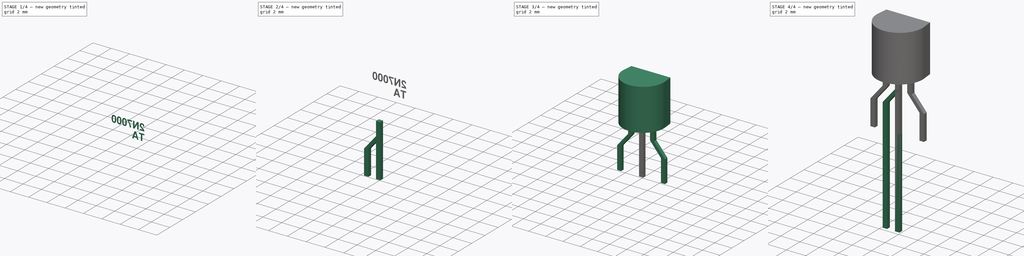
[diagram: build sequence overview — one tinted view per stage of 4, left to right]
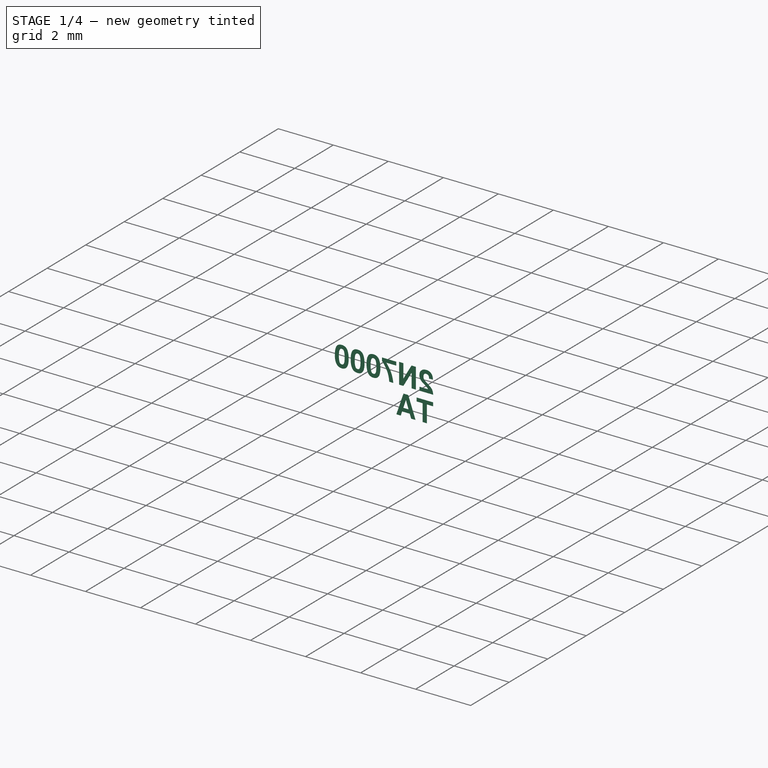
[diagram: stage 1 of 4 — iso view after this stage's code; geometry added in this stage tinted green]
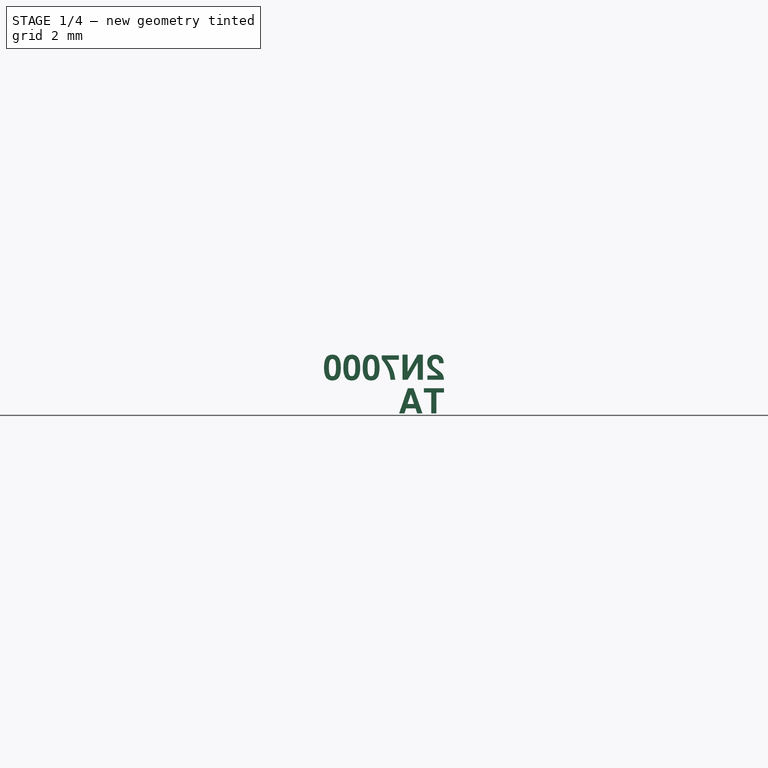
[diagram: stage 1 of 4 — front view after this stage's code; geometry added in this stage tinted green]
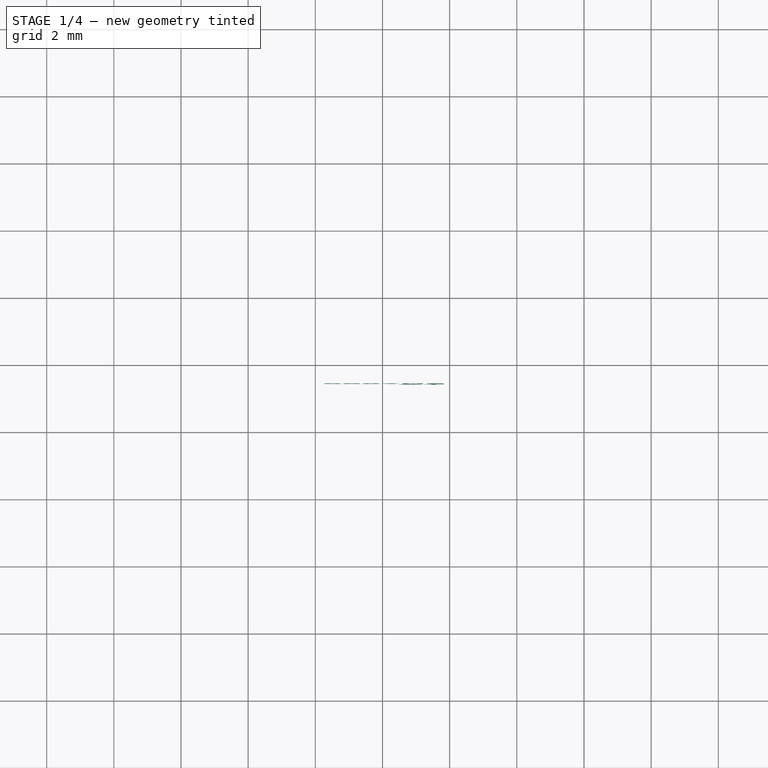
[diagram: stage 1 of 4 — top view after this stage's code; geometry added in this stage tinted green]
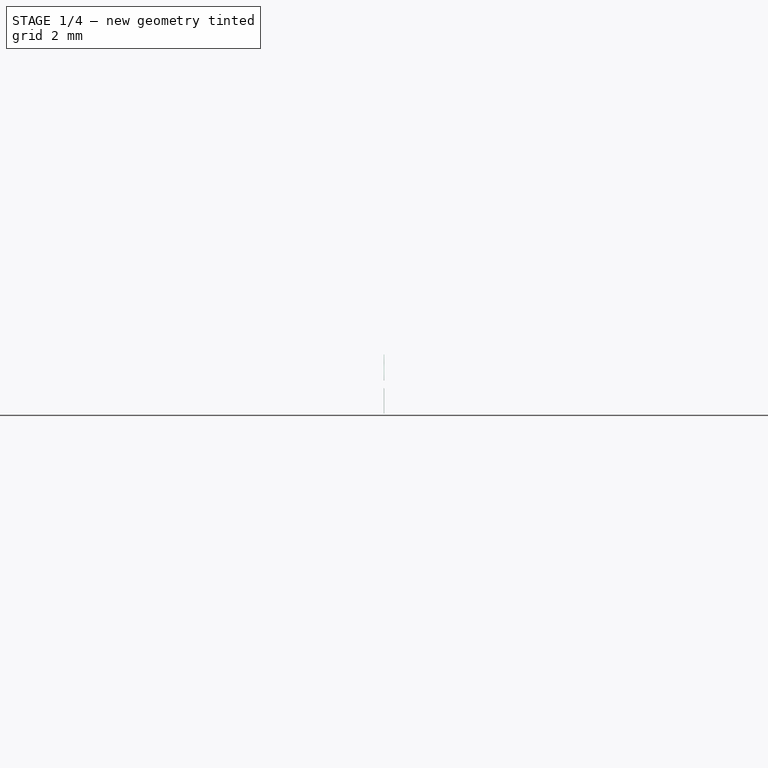
[diagram: stage 1 of 4 — right view after this stage's code; geometry added in this stage tinted green]
FCSTD DOCUMENT  (FreeCAD 0.19R16945 (Git))
Label: TO-92 Preformed
License: All rights reserved
LicenseURL: http://en.wikipedia.org/wiki/All_rights_reserved
objects: PartDesign::Body×8, Sketcher::SketchObject×7, PartDesign::Pad×7, Part::Part2DObjectPython×3, Part::Extrusion×3, PartDesign::FeatureBase×1, Part::MultiFuse×1
note: 37 computed .brp shape members not serialized (recipe doc carries the construction recipe); baked Part::Feature solids carry a one-line shape summary decoded from their .brp

FEATURE [PartDesign::Body] Body  label="CaseRear"
  Group = -> [Sketch,Pad]
  Origin = -> Origin
  Tip = -> Pad
FEATURE [Sketcher::SketchObject] Sketch001
  MapMode = 5
  Support = -> [XY_Plane001]
  expr: Constraints[9] = (3.05 + 4.19) / 2 - (2.13 + 2.66) / 2
  expr: Constraints[8] = 0.95 * Sketch.Constraints.width
  expr: Constraints[6] = (0.3 + 0.52) / 2 / 2
  expr: Constraints[5] = Sketch.Constraints.width
  sketch-geometry (4):
    g0: LineSegment StartX=-2.38 StartY=0.205 StartZ=0 EndX=2.38 EndY=0.205 EndZ=0
    g1: LineSegment StartX=2.38 StartY=0.205 StartZ=0 EndX=2.261 EndY=1.43 EndZ=0
    g2: LineSegment StartX=2.261 StartY=1.43 StartZ=0 EndX=-2.261 EndY=1.43 EndZ=0
    g3: LineSegment StartX=-2.261 StartY=1.43 StartZ=0 EndX=-2.38 EndY=0.205 EndZ=0
  constraints (10):
    c: Coincident(g1,g2)
    c: Coincident(g2,g3)
    c: Coincident(g3,g0)
    c: Symmetric(g1,g2,g-2)
    c: Symmetric(g0,g0,g-2)
    c: DistanceX(g0,g0) = 4.76
    c: DistanceY(g-1,g0) = 0.205
    c: Coincident(g1,g0)
    c: DistanceX(g2,g2) = 4.522
    c: DistanceY(g0,g2) = 1.225
FEATURE [PartDesign::Pad] Pad001
  Length = 4.825
  Length2 = 100
  Profile = -> Sketch001
  Type = 0
  expr: Length = (4.32 + 5.33) / 2
FEATURE [PartDesign::Body] Body014  label="LeadBent_2.6mm_mid"
  Group = -> [Sketch008,Pad008]
  Origin = -> Origin014
  Tip = -> Pad008
FEATURE [Part::Part2DObjectPython] ShapeString  label="Text-1"  # Draft 2D object (typed FeaturePython)
  AttachmentOffset = pos=(0.4,3,0) rot=(0,0,1;0rad)
  FontFile = <userpath>/Desktop/GitHub/freecad-projects/00-fonts/FreeSansBold.ttf
  MapMode = 6
  Placement = pos=(1.861,1.43,3) rot=(0,0.707107,0.707107;3.14159rad)
  Size = 0.4
  String = 2N7000
  Support = -> [Pad001]
  Tracking = 0
FEATURE [Part::Part2DObjectPython] ShapeString001  label="Text-2"  # Draft 2D object (typed FeaturePython)
  AttachmentOffset = pos=(0.4,2,0) rot=(0,0,1;0rad)
  FontFile = <userpath>/Desktop/GitHub/freecad-projects/00-fonts/FreeSansBold.ttf
  MapMode = 6
  Placement = pos=(1.861,1.43,2) rot=(0,0.707107,0.707107;3.14159rad)
  Size = 0.4
  String = TA
  Support = -> [Pad001]
  Tracking = 0
FEATURE [Part::Part2DObjectPython] ShapeString002  label="Text-3"  # Draft 2D object (typed FeaturePython)
  AttachmentOffset = pos=(0.4,1,0) rot=(0,0,1;0rad)
  FontFile = <userpath>/Desktop/GitHub/freecad-projects/00-fonts/FreeSansBold.ttf
  MapMode = 6
  Placement = pos=(1.861,1.43,1) rot=(0,0.707107,0.707107;3.14159rad)
  Size = 0.4
  Support = -> [Pad001]
  Tracking = 0
FEATURE [Part::Extrusion] Extrude  label="Text_1"
  Base = -> ShapeString
  Dir = (0,1,-2e-16)
  DirMode = 2
  FaceMakerClass = Part::FaceMakerBullseye
  LengthFwd = 0.005
  LengthRev = 0
  Solid = false
  Symmetric = false
FEATURE [Part::Extrusion] Extrude001  label="Text_2"
  Base = -> ShapeString001
  Dir = (0,1,-2e-16)
  DirMode = 2
  FaceMakerClass = Part::FaceMakerBullseye
  LengthFwd = 0.005
  LengthRev = 0
  Solid = false
  Symmetric = false
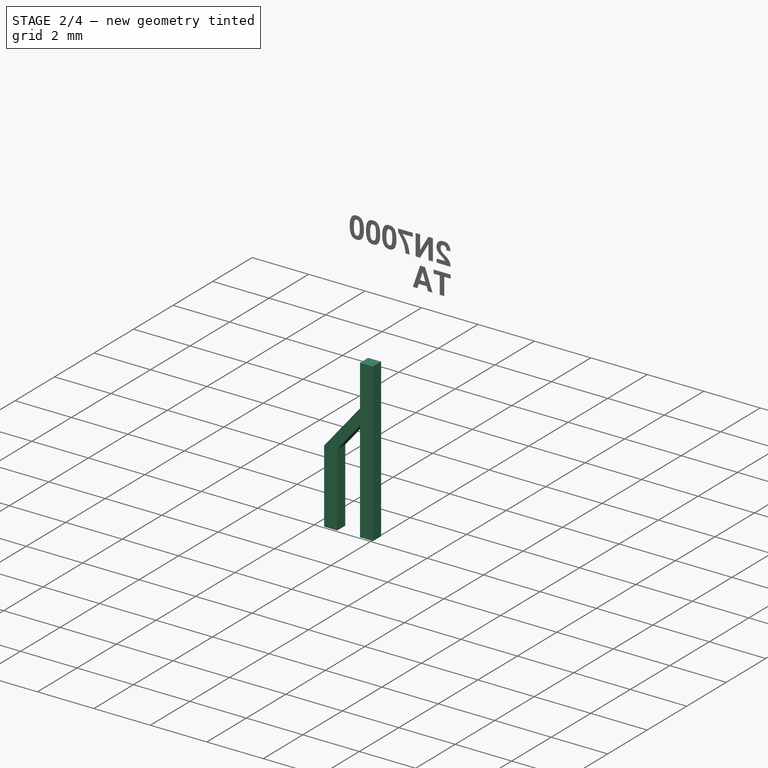
[diagram: stage 2 of 4 — iso view after this stage's code; geometry added in this stage tinted green]
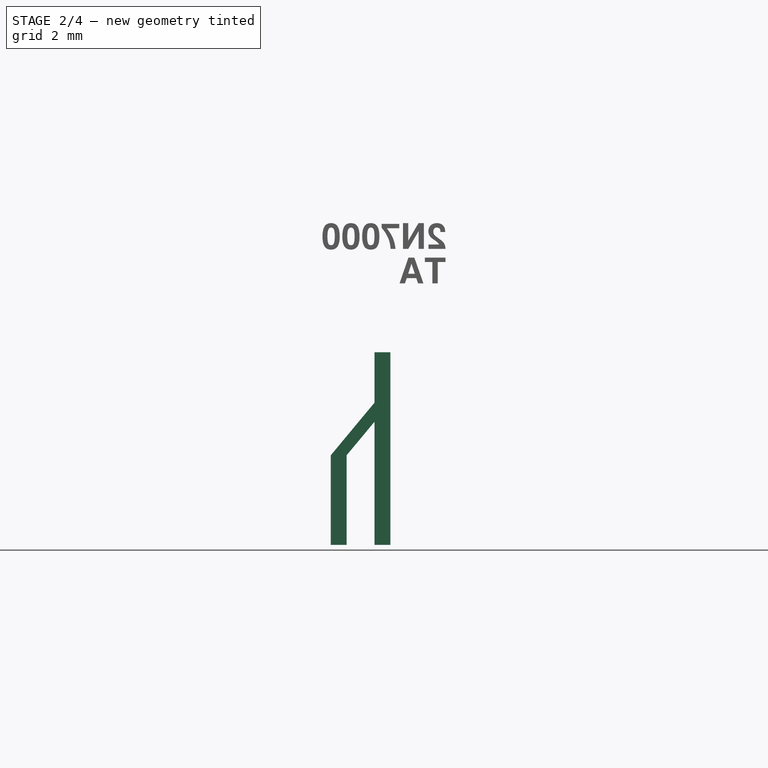
[diagram: stage 2 of 4 — front view after this stage's code; geometry added in this stage tinted green]
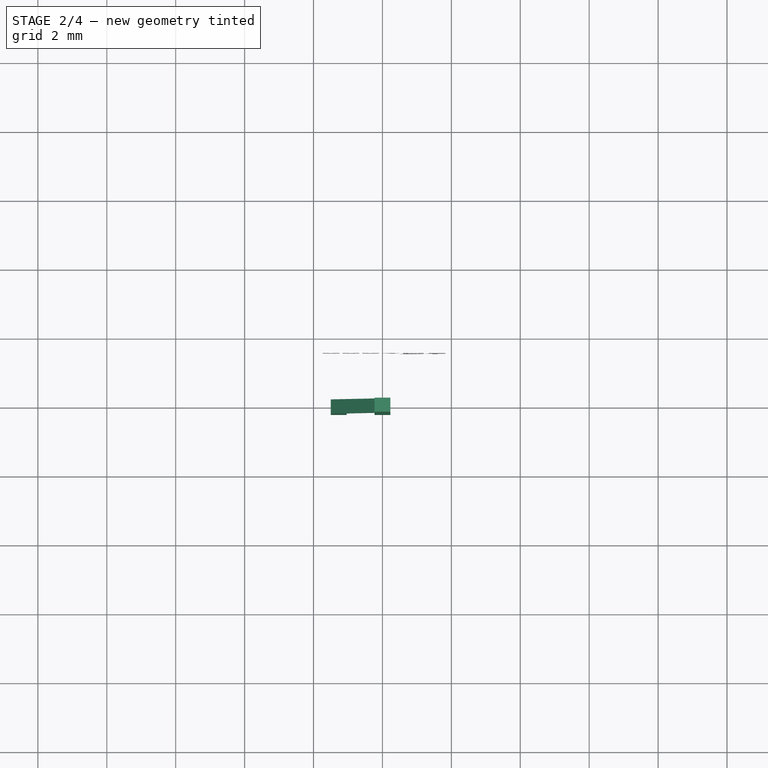
[diagram: stage 2 of 4 — top view after this stage's code; geometry added in this stage tinted green]
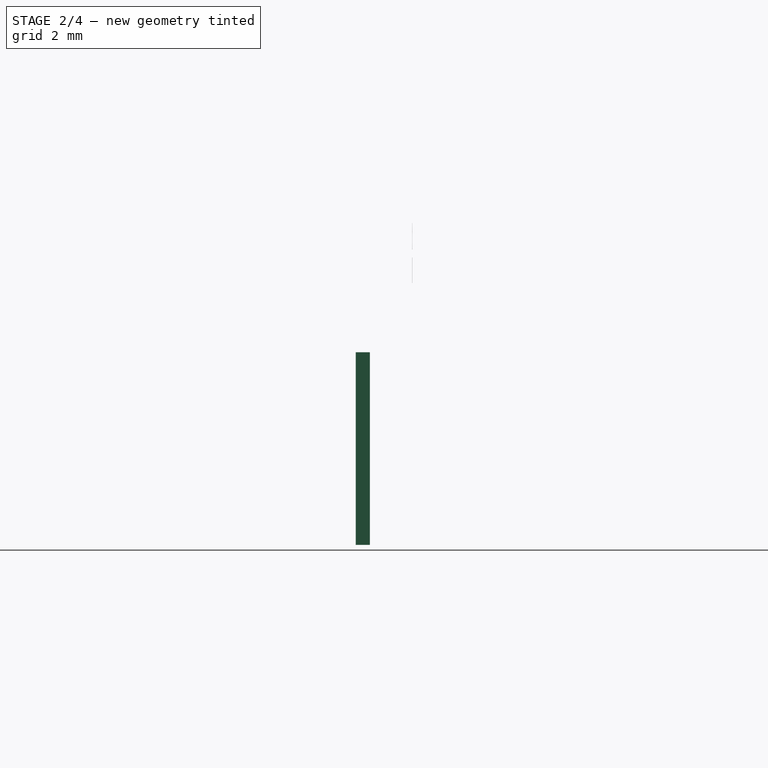
[diagram: stage 2 of 4 — right view after this stage's code; geometry added in this stage tinted green]
FEATURE [PartDesign::Body] Body003  label="LeadBentLong"
  Group = -> [Sketch003,Pad003]
  Origin = -> Origin003
  Placement = pos=(-1.27,0,0) rot=(0,0,1;0rad)
  Tip = -> Pad003
FEATURE [Sketcher::SketchObject] Sketch005
  MapMode = 5
  Placement = pos=(0,0,0) rot=(1,0,0;1.5708rad)
  Support = -> [XZ_Plane008]
  expr: Constraints[20] = Sketch003.Constraints[20]
  expr: Constraints[19] = Sketch003.Constraints[19]
  expr: Constraints[16] = Sketch003.Constraints[16]
  expr: Constraints[2] = Sketch003.Constraints[2]
  sketch-geometry (9):
    g0: LineSegment StartX=-0.23 StartY=0 StartZ=0 EndX=0.23 EndY=0 EndZ=0
    g1: LineSegment StartX=-0.23 StartY=0 StartZ=0 EndX=-0.23 EndY=-1.46314 EndZ=0
    g2: LineSegment StartX=0.23 StartY=0 StartZ=0 EndX=0.23 EndY=-1.46314 EndZ=0
    g3: LineSegment StartX=-1.5 StartY=-5.59 StartZ=0 EndX=-1.04 EndY=-5.59 EndZ=0
    g4: LineSegment StartX=-1.04 StartY=-5.59 StartZ=0 EndX=-1.04 EndY=-2.99 EndZ=0
    g5: LineSegment StartX=-1.5 StartY=-2.99 StartZ=0 EndX=-1.5 EndY=-5.59 EndZ=0
    g6: LineSegment StartX=-0.23 StartY=-1.46314 StartZ=0 EndX=-1.5 EndY=-2.99 EndZ=0
    g7: LineSegment StartX=-1.04 StartY=-2.99 StartZ=0 EndX=0.23 EndY=-1.46314 EndZ=0
    g8: GeomPoint X=-1.27 Y=-5.59 Z=0
  constraints (23):
    c: PointOnObject(g0,g-1)
    c: Symmetric(g0,g0,g-1)
    c: DistanceX(g0,g0) = 0.46
    c: Vertical(g1)
    c: Coincident(g2,g0)
    c: Vertical(g2)
    c: Coincident(g3,g4)
    c: Coincident(g5,g3)
    c: Horizontal(g3)
    c: Vertical(g4)
    c: Vertical(g5)
    c: Coincident(g6,g1)
    c: Coincident(g7,g4)
    c: Coincident(g7,g2)
    c: Coincident(g6,g5)
    c: Coincident(g1,g0)
    c: DistanceY(g5,g0) = 2.99
    c: DistanceY(g5,g5) = 2.6
    c: Symmetric(g3,g3,g8)
    c: DistanceX(g8,g-1) = 1.27
    c: DistanceX(g3,g3) = 0.46
    c: Horizontal(g4,g5)
    c: Horizontal(g2,g1)
FEATURE [PartDesign::Pad] Pad005
  Length = 0.41
  Length2 = 100
  Midplane = true
  Placement = pos=(0,0,0) rot=(1,0,0;1.5708rad)
  Profile = -> Sketch005
  Type = 0
  expr: Length = (0.3 + 0.52) / 2
FEATURE [PartDesign::Body] Body012  label="LeadBentLong_Clone"
  BaseFeature = -> Body003
  Group = -> [Clone004]
  Origin = -> Origin012
  Placement = pos=(1.27,0,0) rot=(0,0,1;3.14159rad)
  Tip = -> Clone004
FEATURE [Sketcher::SketchObject] Sketch007
  MapMode = 5
  Placement = pos=(0,0,0) rot=(1,0,0;1.5708rad)
  Support = -> [XZ_Plane013]
  expr: Constraints[20] = Sketch003.Constraints[20]
  expr: Constraints[19] = Sketch003.Constraints[19]
  expr: Constraints[16] = Sketch003.Constraints[16]
  expr: Constraints[2] = Sketch003.Constraints[2]
  sketch-geometry (9):
    g0: LineSegment StartX=-0.23 StartY=0 StartZ=0 EndX=0.23 EndY=0 EndZ=0
    g1: LineSegment StartX=-0.23 StartY=0 StartZ=0 EndX=-0.23 EndY=-1.46314 EndZ=0
    g2: LineSegment StartX=0.23 StartY=0 StartZ=0 EndX=0.23 EndY=-1.46314 EndZ=0
    g3: LineSegment StartX=-1.5 StartY=-5.59 StartZ=0 EndX=-1.04 EndY=-5.59 EndZ=0
    g4: LineSegment StartX=-1.04 StartY=-5.59 StartZ=0 EndX=-1.04 EndY=-2.99 EndZ=0
    g5: LineSegment StartX=-1.5 StartY=-2.99 StartZ=0 EndX=-1.5 EndY=-5.59 EndZ=0
    g6: LineSegment StartX=-0.23 StartY=-1.46314 StartZ=0 EndX=-1.5 EndY=-2.99 EndZ=0
    g7: LineSegment StartX=-1.04 StartY=-2.99 StartZ=0 EndX=0.23 EndY=-1.46314 EndZ=0
    g8: GeomPoint X=-1.27 Y=-5.59 Z=0
  constraints (23):
    c: PointOnObject(g0,g-1)
    c: Symmetric(g0,g0,g-1)
    c: DistanceX(g0,g0) = 0.46
    c: Vertical(g1)
    c: Coincident(g2,g0)
    c: Vertical(g2)
    c: Coincident(g3,g4)
    c: Coincident(g5,g3)
    c: Horizontal(g3)
    c: Vertical(g4)
    c: Vertical(g5)
    c: Coincident(g6,g1)
    c: Coincident(g7,g4)
    c: Coincident(g7,g2)
    c: Coincident(g6,g5)
    c: Coincident(g1,g0)
    c: DistanceY(g5,g0) = 2.99
    c: DistanceY(g5,g5) = 2.6
    c: Symmetric(g3,g3,g8)
    c: DistanceX(g8,g-1) = 1.27
    c: DistanceX(g3,g3) = 0.46
    c: Horizontal(g4,g5)
    c: Horizontal(g2,g1)
FEATURE [PartDesign::Pad] Pad007
  Length = 0.41
  Length2 = 100
  Midplane = true
  Placement = pos=(0,0,0) rot=(1,0,0;1.5708rad)
  Profile = -> Sketch007
  Type = 0
  expr: Length = (0.3 + 0.52) / 2
FEATURE [PartDesign::Body] Body013  label="LeadBent_2.6mm001"
  Group = -> [Sketch007,Pad007]
  Origin = -> Origin013
  Placement = pos=(1.27,0,0) rot=(0,0,1;3.14159rad)
  Tip = -> Pad007
FEATURE [Sketcher::SketchObject] Sketch008
  MapMode = 5
  Support = -> [XY_Plane014]
  expr: Constraints[10] = Sketch002.Constraints[10]
  expr: Constraints[9] = Sketch002.Constraints[9]
  sketch-geometry (4):
    g0: LineSegment StartX=-0.23 StartY=-0.205 StartZ=0 EndX=0.23 EndY=-0.205 EndZ=0
    g1: LineSegment StartX=0.23 StartY=-0.205 StartZ=0 EndX=0.23 EndY=0.205 EndZ=0
    g2: LineSegment StartX=0.23 StartY=0.205 StartZ=0 EndX=-0.23 EndY=0.205 EndZ=0
    g3: LineSegment StartX=-0.23 StartY=0.205 StartZ=0 EndX=-0.23 EndY=-0.205 EndZ=0
  constraints (11):
    c: Coincident(g0,g1)
    c: Coincident(g1,g2)
    c: Coincident(g2,g3)
    c: Coincident(g3,g0)
    c: Horizontal(g0)
    c: Horizontal(g2)
    c: Vertical(g1)
    c: Vertical(g3)
    c: Symmetric(g1,g0,g-1)
    c: DistanceX(g2,g2) = 0.46
    c: DistanceY(g1,g1) = 0.41
FEATURE [PartDesign::Pad] Pad008
  Length = 5.59
  Length2 = 100
  Profile = -> Sketch008
  Reversed = true
  Type = 0
  expr: Length = (2.54 + 3.44) / 2 + 2.6
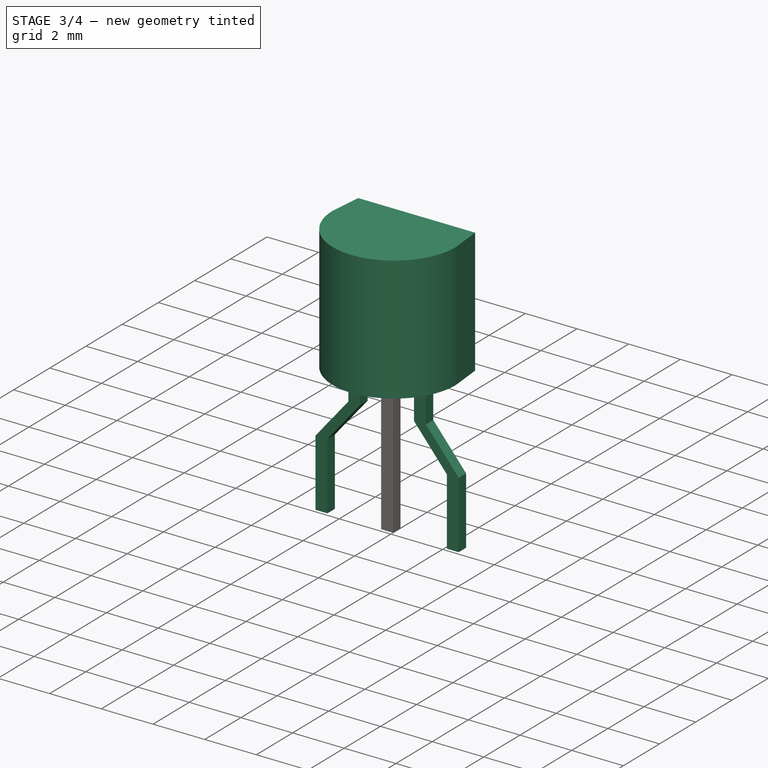
[diagram: stage 3 of 4 — iso view after this stage's code; geometry added in this stage tinted green]
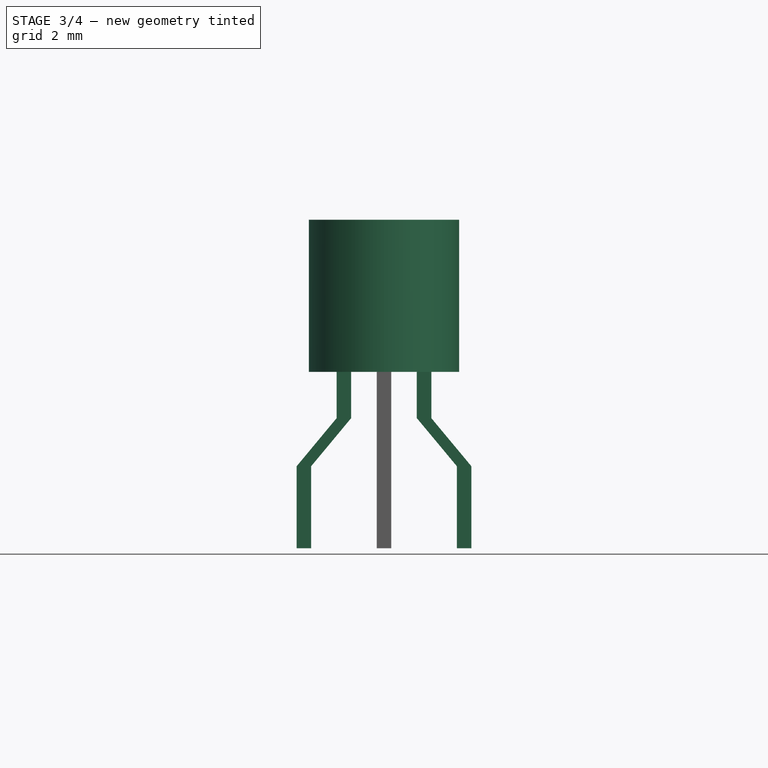
[diagram: stage 3 of 4 — front view after this stage's code; geometry added in this stage tinted green]
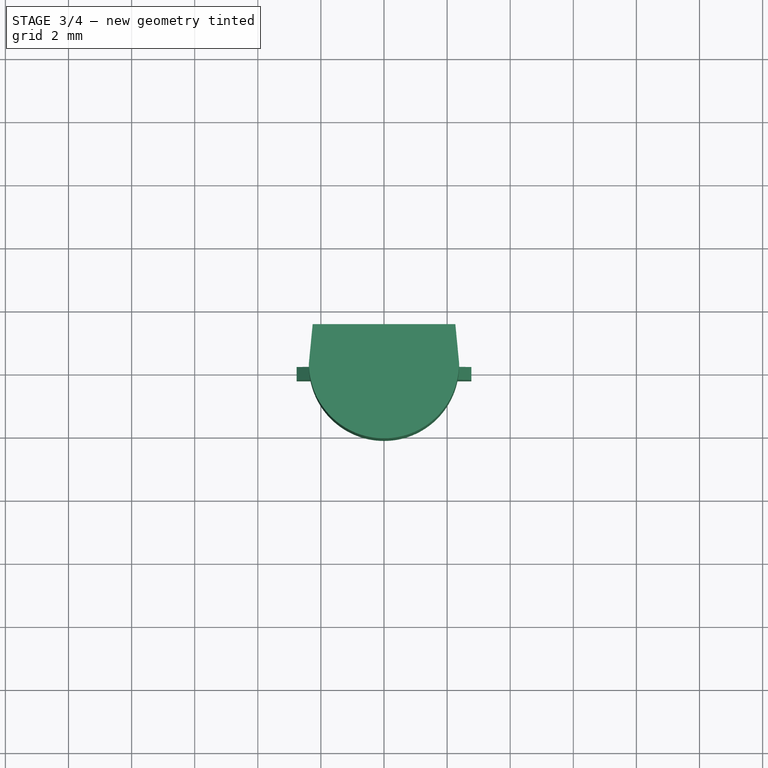
[diagram: stage 3 of 4 — top view after this stage's code; geometry added in this stage tinted green]
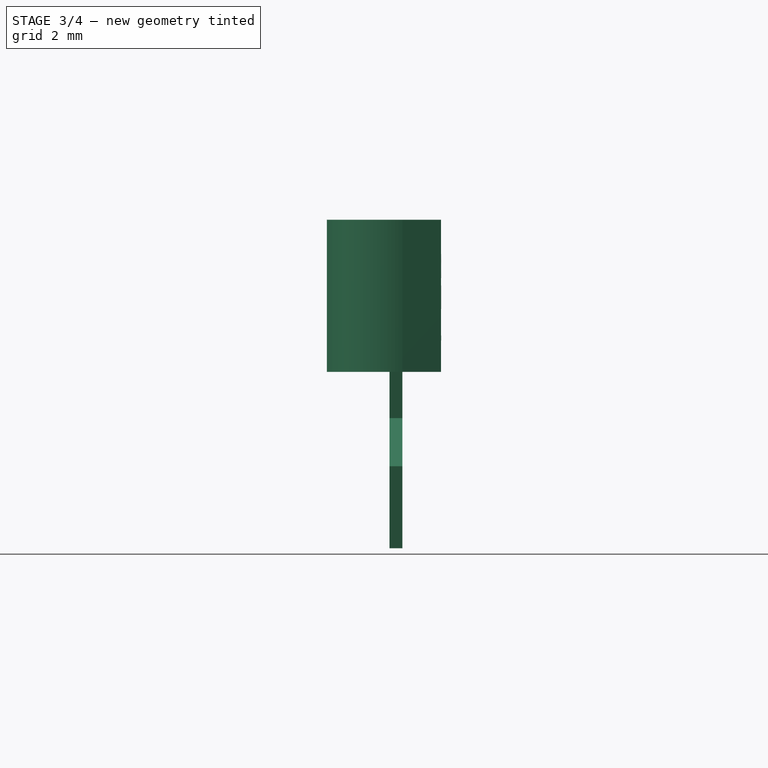
[diagram: stage 3 of 4 — right view after this stage's code; geometry added in this stage tinted green]
FEATURE [Sketcher::SketchObject] Sketch
  MapMode = 5
  Support = -> [XY_Plane]
  expr: Constraints.width = (4.32 + 5.2) / 2
  expr: Constraints[7] = (2.13 + 2.66) / 2
  expr: Constraints[4] = (0.3 + 0.52) / 2 / 2
  sketch-geometry (3):
    g0: ArcOfCircle CenterX=0 CenterY=0.190047 CenterZ=0 NormalX=0 NormalY=0 NormalZ=1 AngleXU=0 Radius=2.38005 StartAngle=3.13531 EndAngle=6.28947
    g1: LineSegment StartX=-2.38 StartY=0.205 StartZ=0 EndX=2.38 EndY=0.205 EndZ=0
    g2: GeomPoint X=0 Y=-2.19 Z=0
  constraints (9):
    c: PointOnObject(g0,g-2)
    c: Coincident(g1,g0)
    c: Coincident(g1,g0)
    c: Horizontal(g1)
    c: DistanceY(g-1,g0) = 0.205
    c: PointOnObject(g2,g0)
    c: PointOnObject(g2,g-2)
    c: DistanceY(g2,g0) = 2.395
    c: DistanceX(g1,g1) = 4.76  'width'
FEATURE [PartDesign::Pad] Pad
  Length = 4.825
  Length2 = 100
  Profile = -> Sketch
  Type = 0
  expr: Length = (4.32 + 5.33) / 2
FEATURE [Part::Extrusion] Extrude002  label="Text_3"
  Base = -> ShapeString002
  Dir = (0,1,-2e-16)
  DirMode = 2
  FaceMakerClass = Part::FaceMakerBullseye
  LengthFwd = 0.005
  LengthRev = 0
  Solid = false
  Symmetric = false
FEATURE [Part::MultiFuse] Fusion  label="2N7000TA"
  Shapes = -> [Extrude001,Extrude,Body013,Body014,Body008,Body001,Body]
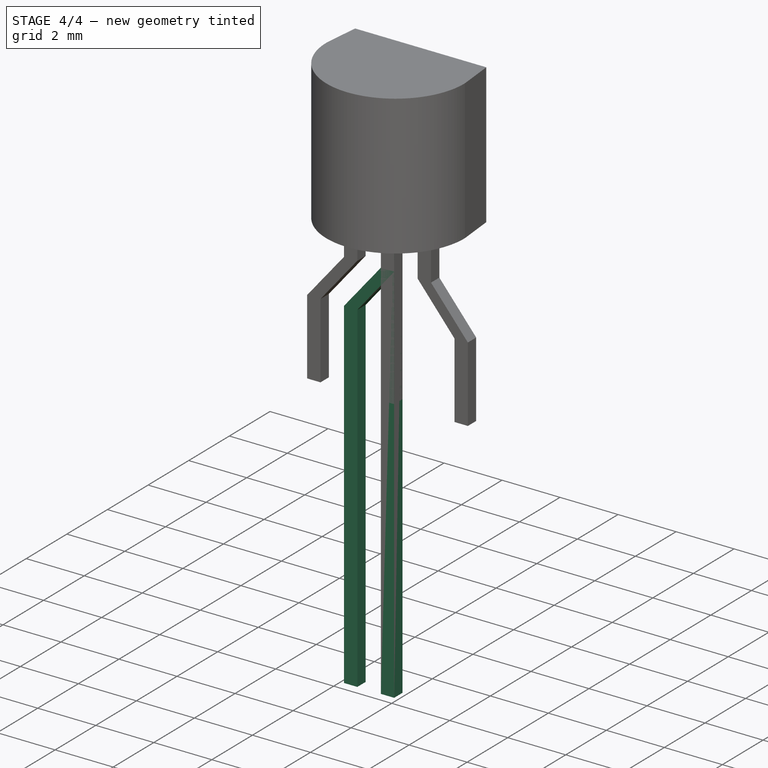
[diagram: stage 4 of 4 — iso view after this stage's code; geometry added in this stage tinted green]
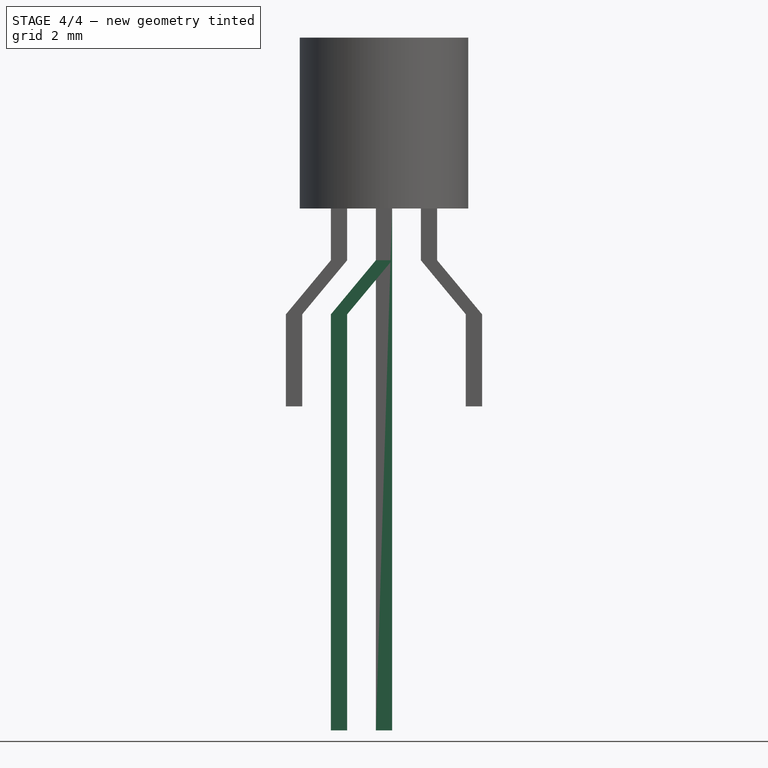
[diagram: stage 4 of 4 — front view after this stage's code; geometry added in this stage tinted green]
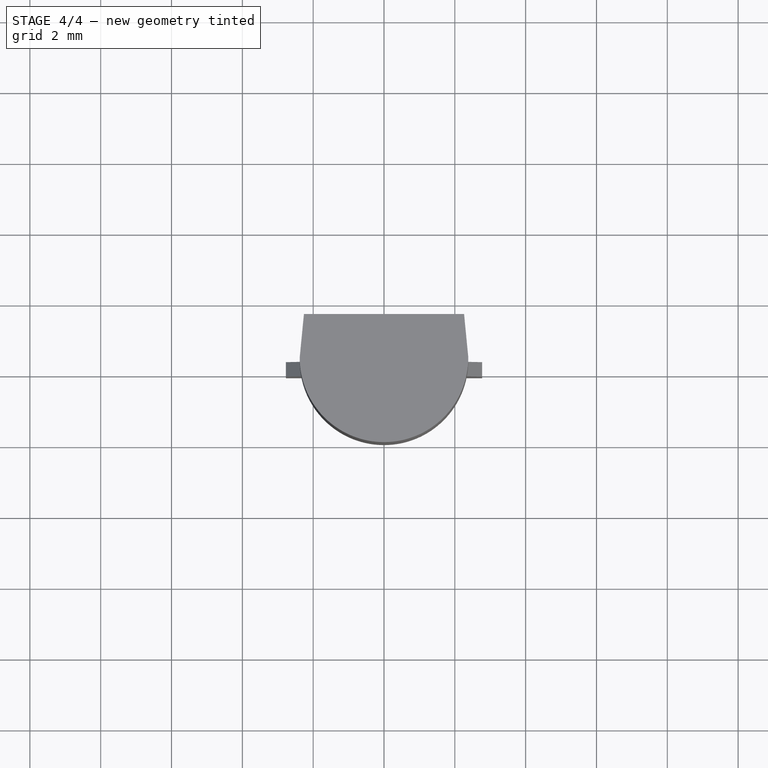
[diagram: stage 4 of 4 — top view after this stage's code; geometry added in this stage tinted green]
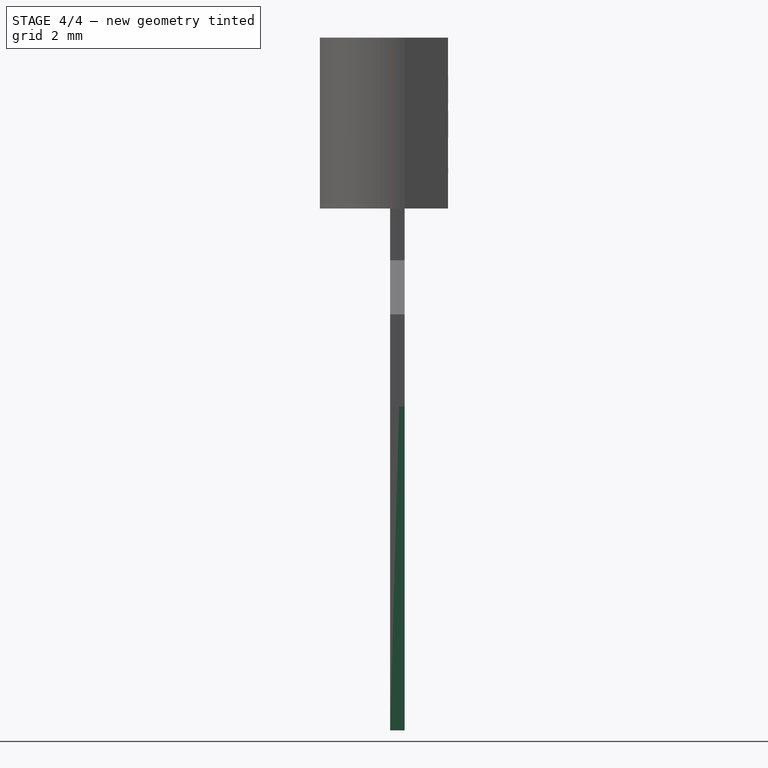
[diagram: stage 4 of 4 — right view after this stage's code; geometry added in this stage tinted green]
FEATURE [PartDesign::Body] Body001  label="CaseFront"
  Group = -> [Sketch001,Pad001]
  Origin = -> Origin001
  Tip = -> Pad001
FEATURE [Sketcher::SketchObject] Sketch003
  MapMode = 5
  Placement = pos=(0,0,0) rot=(1,0,0;1.5708rad)
  Support = -> [XZ_Plane003]
  expr: Constraints[19] = 1.27
  expr: Constraints[17] = (10.5 + 13) / 2
  expr: Constraints[20] = (0.36 + 0.5600000000000001) / 2
  expr: Constraints[16] = (2.54 + 3.44) / 2
  expr: Constraints[2] = (0.36 + 0.5600000000000001) / 2
  sketch-geometry (9):
    g0: LineSegment StartX=-0.23 StartY=0 StartZ=0 EndX=0.23 EndY=0 EndZ=0
    g1: LineSegment StartX=-0.23 StartY=0 StartZ=0 EndX=-0.23 EndY=-1.46314 EndZ=0
    g2: LineSegment StartX=0.23 StartY=0 StartZ=0 EndX=0.23 EndY=-1.46314 EndZ=0
    g3: LineSegment StartX=-1.5 StartY=-14.74 StartZ=0 EndX=-1.04 EndY=-14.74 EndZ=0
    g4: LineSegment StartX=-1.04 StartY=-14.74 StartZ=0 EndX=-1.04 EndY=-2.99 EndZ=0
    g5: LineSegment StartX=-1.5 StartY=-2.99 StartZ=0 EndX=-1.5 EndY=-14.74 EndZ=0
    g6: LineSegment StartX=-0.23 StartY=-1.46314 StartZ=0 EndX=-1.5 EndY=-2.99 EndZ=0
    g7: LineSegment StartX=-1.04 StartY=-2.99 StartZ=0 EndX=0.23 EndY=-1.46314 EndZ=0
    g8: GeomPoint X=-1.27 Y=-14.74 Z=0
  constraints (23):
    c: PointOnObject(g0,g-1)
    c: Symmetric(g0,g0,g-1)
    c: DistanceX(g0,g0) = 0.46
    c: Vertical(g1)
    c: Coincident(g2,g0)
    c: Vertical(g2)
    c: Coincident(g3,g4)
    c: Coincident(g5,g3)
    c: Horizontal(g3)
    c: Vertical(g4)
    c: Vertical(g5)
    c: Coincident(g6,g1)
    c: Coincident(g7,g4)
    c: Coincident(g7,g2)
    c: Coincident(g6,g5)
    c: Coincident(g1,g0)
    c: DistanceY(g5,g0) = 2.99
    c: DistanceY(g5,g5) = 11.75
    c: Symmetric(g3,g3,g8)
    c: DistanceX(g8,g-1) = 1.27
    c: DistanceX(g3,g3) = 0.46
    c: Horizontal(g4,g5)
    c: Horizontal(g2,g1)
FEATURE [PartDesign::Pad] Pad003
  Length = 0.41
  Length2 = 100
  Midplane = true
  Placement = pos=(0,0,0) rot=(1,0,0;1.5708rad)
  Profile = -> Sketch003
  Type = 0
  expr: Length = (0.3 + 0.52) / 2
FEATURE [PartDesign::Body] Body008  label="LeadBent_2.6mm"
  Group = -> [Sketch005,Pad005]
  Origin = -> Origin008
  Placement = pos=(-1.27,0,0) rot=(0,0,1;0rad)
  Tip = -> Pad005
FEATURE [Sketcher::SketchObject] Sketch006
  MapMode = 5
  expr: Constraints[10] = Sketch002.Constraints[10]
  expr: Constraints[9] = Sketch002.Constraints[9]
  sketch-geometry (4):
    g0: LineSegment StartX=-0.23 StartY=-0.205 StartZ=0 EndX=0.23 EndY=-0.205 EndZ=0
    g1: LineSegment StartX=0.23 StartY=-0.205 StartZ=0 EndX=0.23 EndY=0.205 EndZ=0
    g2: LineSegment StartX=0.23 StartY=0.205 StartZ=0 EndX=-0.23 EndY=0.205 EndZ=0
    g3: LineSegment StartX=-0.23 StartY=0.205 StartZ=0 EndX=-0.23 EndY=-0.205 EndZ=0
  constraints (11):
    c: Coincident(g0,g1)
    c: Coincident(g1,g2)
    c: Coincident(g2,g3)
    c: Coincident(g3,g0)
    c: Horizontal(g0)
    c: Horizontal(g2)
    c: Vertical(g1)
    c: Vertical(g3)
    c: Symmetric(g1,g0,g-1)
    c: DistanceX(g2,g2) = 0.46
    c: DistanceY(g1,g1) = 0.41
FEATURE [PartDesign::Pad] Pad006
  Length = 14.74
  Length2 = 100
  Profile = -> Sketch006
  Reversed = true
  Type = 0
  expr: Length = (10.5 + 13) / 2 + (2.54 + 3.44) / 2
FEATURE [PartDesign::Body] Body009  label="LeadStraight_ForBentLong"
  Group = -> [Sketch006,Pad006]
  Origin = -> Origin009
  Tip = -> Pad006
FEATURE [PartDesign::FeatureBase] Clone004
  BaseFeature = -> Body003
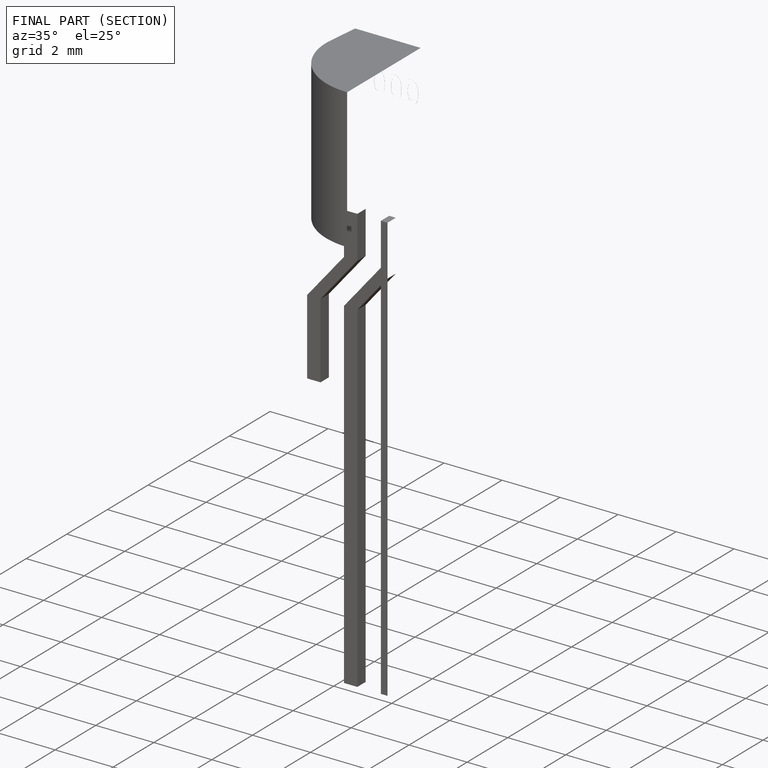
[diagram: finished part — half-section view (interior)]
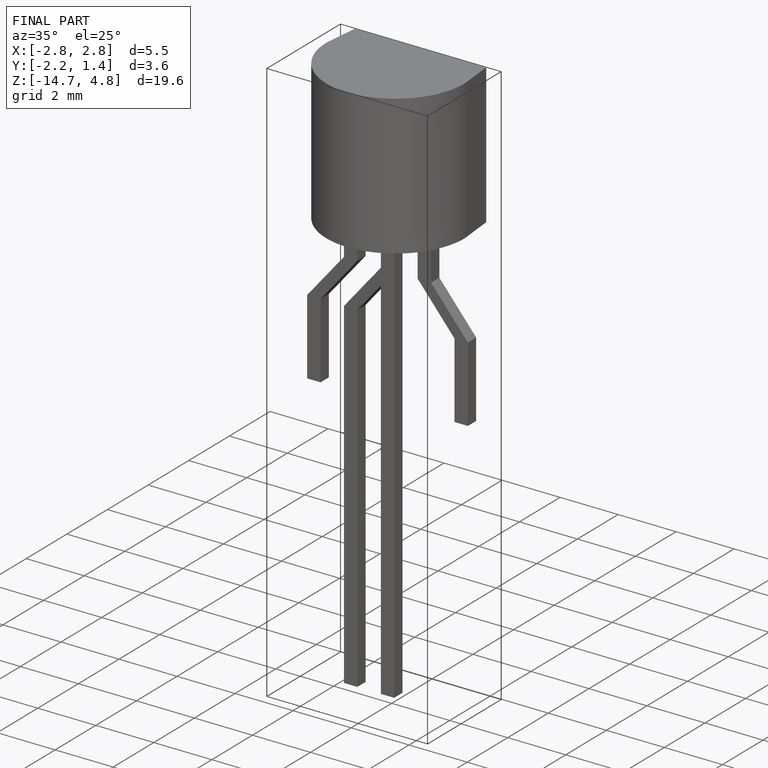
[diagram: finished part — iso view with bounding-box wireframe]
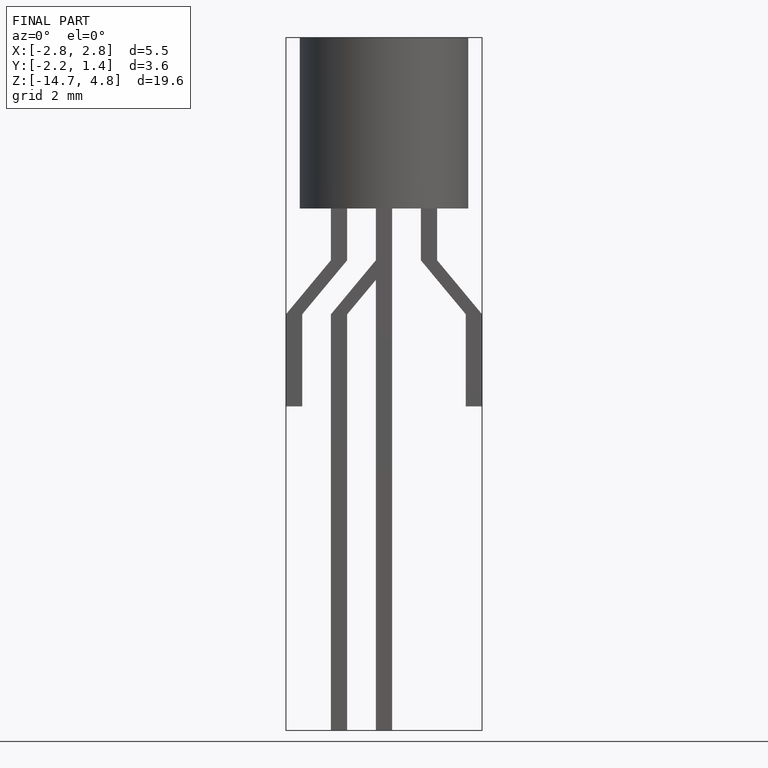
[diagram: finished part — front view with bounding-box wireframe]
